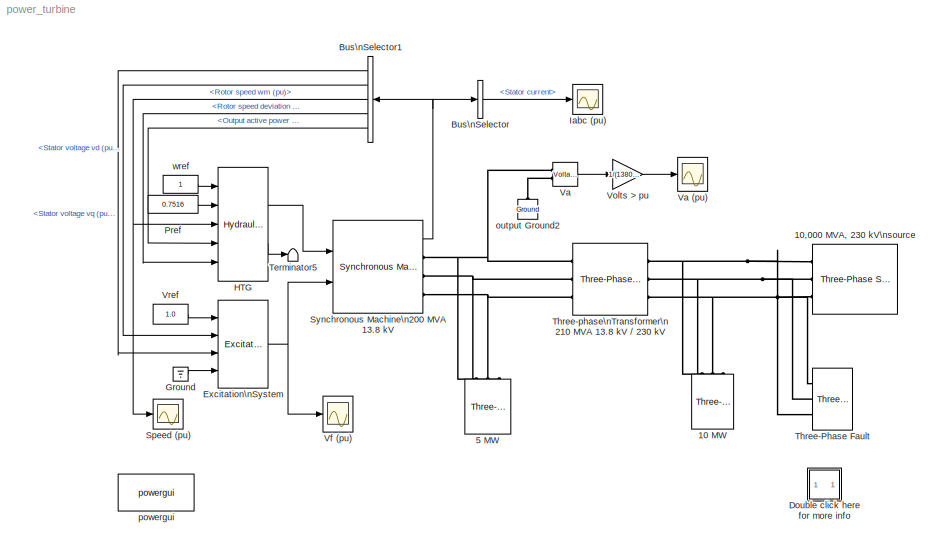
MODEL power_turbine
KIND model
BLOCK [Scope]  Iabc (pu)
  Floating = off
  NumInputPorts = 1
  Ports = [1]
  SID = 1
  ScopeSpecificationString = Simulink.scopes.TimeScopeBlockCfg('CurrentConfiguration', extmgr.ConfigurationSet(extmgr.Configuration('Core','General UI',true),extmgr.Configuration('Core','Source UI',true),extmgr.Configuration('Sources','WiredSimulink',true,'DataLoggingVariableName','ScopeData1','DataLoggingSaveFormat','Array','DataLoggingDecimation','1','DataLoggingDecimateData',true),extmgr.Configuration('Visuals','Time Domai...<+1734ch>
BLOCK [Scope]  Speed (pu)
  Floating = off
  NumInputPorts = 1
  Ports = [1]
  SID = 2
  ScopeSpecificationString = C++SS(StrPVP('Location','[601, 723, 844, 931]'),StrPVP('Open','off'),StrPVP('TickLabels','on'),MxPVP('AxesTitles',54,'struct(''axes1'',''%<SignalLabel>'')'),StrPVP('TimeRange','2'),StrPVP('YMin','0.98'),StrPVP('YMax','1.02'),StrPVP('SaveName','Pm'),StrPVP('DataFormat','Array'),StrPVP('LimitDataPoints','off'),StrPVP('BlockParamSampleTime','0'),StrPVP('Decimation','1'),StrPVP('BlockParamSampleInput'...<+8ch>
BLOCK [Reference] 10 MW  REF=powerlib/Elements/Three-Phase\nParallel RLC Load
  ActivePower = 10e6
  AttributesFormatString = \\n
  CapacitivePower = 0
  Configuration = Y (grounded)
  InductivePower = 0
  LConnTagsString = A|B|C
  LoadType = constant Z
  Measurements = None
  NominalFrequency = 60
  NominalVoltage = 230e3
  Pabc = [10e3 9e3 11e3]
  Pabcp = [10e3 9e3 11e3]
  Ports = [0, 0, 0, 0, 0, 3]
  QCabc = [100 90 110]
  QCabcp = [100 90 110]
  QLabc = [100 90 110]
  QLabcp = [100 90 110]
  SID = 3
  SourceBlock = powerlib/Elements/Three-Phase\nParallel RLC Load
  SourceProductBaseCode = PS
  SourceProductName = Simscape Electrical
  SourceType = Three-Phase Parallel RLC Load
  UnbalancedPower = off
  Vabc = [1e3 1e3 1e3]
  Vabcp = [1e3 1e3 1e3]
BLOCK [Reference] 10,000 MVA, 230 kV\nsource  REF=powerlib/Electrical\nSources/Three-Phase Source
  BaseVoltage = 230e3
  BusType = swing
  Frequency = 60
  Inductance = 0.0140
  InternalConnection = Yg
  NonIdealSource = on
  PhaseAngle = 0
  PhaseAngles_phases = [0 -120 +120]
  Ports = [0, 0, 0, 0, 0, 0, 3]
  Pref = 10e3
  Prefabc = [10e3, 10e3, 10e3]
  Qmax = inf
  Qmin = -inf
  Qref = 0
  Qrefabc = [0, 0, 0]
  Resistance = 0.529
  SID = 4
  ShortCircuitLevel = 10000e6
  SourceBlock = powerlib/Electrical\nSources/Three-Phase Source
  SourceProductBaseCode = PS
  SourceProductName = Simscape Electrical
  SourceType = Three-Phase Source
  SpecifyImpedance = on
  Voltage = 230e3
  VoltagePhases = off
  Voltage_phases = [25e3 25e3 25e3]/sqrt(3)
  XRratio = 10
BLOCK [Reference] 5 MW  REF=powerlib/Elements/Three-Phase\nParallel RLC Load
  ActivePower = 5e6
  AttributesFormatString = \\n
  CapacitivePower = 0
  Configuration = Y (grounded)
  InductivePower = 0
  LConnTagsString = A|B|C
  LoadType = constant Z
  Measurements = None
  NominalFrequency = 60
  NominalVoltage = 13.8e3
  Pabc = [10e3 9e3 11e3]
  Pabcp = [10e3 9e3 11e3]
  Ports = [0, 0, 0, 0, 0, 3]
  QCabc = [100 90 110]
  QCabcp = [100 90 110]
  QLabc = [100 90 110]
  QLabcp = [100 90 110]
  SID = 6
  SourceBlock = powerlib/Elements/Three-Phase\nParallel RLC Load
  SourceProductBaseCode = PS
  SourceProductName = Simscape Electrical
  SourceType = Three-Phase Parallel RLC Load
  UnbalancedPower = off
  Vabc = [1e3 1e3 1e3]
  Vabcp = [1e3 1e3 1e3]
BLOCK [BusSelector] Bus\nSelector
  OutputAsBus = off
  OutputSignals = Stator current
  Ports = [1, 1]
  SID = 7
BLOCK [BusSelector] Bus\nSelector1
  OutputAsBus = off
  OutputSignals = dq0 components.Stator voltage  vq (pu),dq0 components.Stator voltage  vd (pu),Mechanical.Rotor speed  wm  (pu),Mechanical.Rotor speed deviation  dw (pu),Output active power   Peo (pu)
  Ports = [1, 5]
  SID = 8
BLOCK [SubSystem] Double click here for more info
  OpenFcn = showdemo(bdroot(gcb))
  Ports = []
  RequestExecContextInheritance = off
  SID = 9
BLOCK [Reference] Excitation\nSystem  REF=sps_avr/Excitation System
  Ports = [4, 1]
  SID = 25
  SourceBlock = sps_avr/Excitation System
  SourceProductBaseCode = PS
  SourceProductName = Simscape Electrical
  SourceType = Excitation System
  damp = [ 0.001, 0.1 ]
  exc = [ 1, 0 ]
  lim = [ -11.5, 11.5, 0 ]
  reg = [ 300, 0.001 ]
  sat = [ 0, 0 ]
  tgr = [ 0, 0 ]
  tr = 20e-3
  v0 = [1,1.0]
BLOCK [Ground] Ground
  SID = 26
BLOCK [Reference] HTG  REF=powerlib/Machines/Hydraulic Turbine\nand Governor
  Ports = [5, 2]
  SID = 27
  SourceBlock = powerlib/Machines/Hydraulic Turbine\nand Governor
  SourceProductBaseCode = PS
  SourceProductName = Simscape Electrical
  SourceType = Hydraulic Turbine and Governor
  dref = 0
  gate = [  0.01  0.97518  -0.1  0.1 ]
  hyd = [  0  2.67  ]
  po = 1
  reg = [  0.05  1.163  0.105  0  0.01  ]
  sm = [ 10/3  0.07 ]
BLOCK [Constant] Pref
  SID = 28
  Value = 0.7516
BLOCK [Reference] Synchronous Machine\n200 MVA 13.8 kV  REF=powerlib/Machines/Synchronous Machine\npu Standard
  AttributesFormatString = \\n\\n
  BusType = PV
  InitialConditions = [0 0 0 0 0 0 0 0 1]
  IterativeDiscreteModel = Trapezoidal non iterative
  IterativeModel = Forward Euler
  LoadFlowParameters = [1 150000000 0 0]
  MeasurementBus = off
  Mechanical = [ 3.2 0  32]
  MechanicalLoad = Mechanical power Pm
  NominalParameters = [ 200E6  13800   60 ]
  PLF = 0
  PolePairs = 32
  Ports = [2, 1, 0, 0, 0, 0, 3]
  Pref = 0
  PresetModel = No
  QLF = 0
  Qmax = inf
  Qmin = -inf
  Qref = 0
  Reactances1 = [ 31 32 33 34 35 36 37 ]
  Reactances2 = [ 1.305, 0.296, 0.252, 0.474, 0.243, 0.18 ]
  RotorType = Salient-pole
  SID = 29
  Saturation = [0.6404,0.7127,0.8441,0.9214,0.9956,1.082,1.19,1.316,1.457;0.7,0.7698,0.8872,0.9466,0.9969,1.046,1.1,1.151,1.201]
  SetSaturation = off
  ShowDetailedParameters = on
  SourceBlock = powerlib/Machines/Synchronous Machine\npu Standard
  SourceProductBaseCode = PS
  SourceProductName = Simscape Electrical
  SourceType = Synchronous Machine
  StatorResistance = 2.8544e-3
  TimeConstants1 = []
  TimeConstants2 = []
  TimeConstants3 = []
  TimeConstants4 = []
  TimeConstants5 = [ 1.01, 0.053, 0.1 ]
  TimeConstants6 = []
  TimeConstants7 = []
  TimeConstants8 = []
  TsBlock = -1
  TsPowergui = 0
  Units = per unit standard parameters
  dAxisTimeConstants = Short-circuit
  qAxisTimeConstants = Open-circuit
BLOCK [Terminator] Terminator5
  SID = 30
BLOCK [Reference] Three-Phase Fault  REF=powerlib/Elements/Three-Phase Fault
  External = off
  FaultA = on
  FaultB = on
  FaultC = on
  FaultResistance = 0.001
  GroundFault = on
  GroundResistance = 0.01
  InitialStates = 0
  Measurements = None
  Ports = [0, 0, 0, 0, 0, 3]
  SID = 40
  SnubberCapacitance = inf
  SnubberResistance = 1e6
  SourceBlock = powerlib/Elements/Three-Phase Fault
  SourceProductBaseCode = PS
  SourceProductName = Simscape Electrical
  SourceType = Three-Phase Fault
  SwitchStatus = NaN
  SwitchTimes = [1/60  5/60]
BLOCK [Reference] Three-phase\nTransformer\n210 MVA 13.8 kV // 230 kV  REF=powerlib/Elements/Three-Phase\nTransformer\n(Two Windings)
  AttributesFormatString = \\n
  BreakLoop = off
  CoreType = Three single-phase transformers
  DataFile = 'hysteresis'
  DataType = off
  DiscreteSolver = Trapezoidal iterative
  Hysteresis = off
  InitialFluxes = [ 0.8 , -0.8 , 0.7 ]
  L0 = 0.5
  Lm = 500
  Measurements = None
  NominalPower = [ 210e6 60 ]
  Ports = [0, 0, 0, 0, 0, 3, 3]
  Rm = 500
  SID = 31
  Saturation = [ 0,0  ;  0.005,1.2  ;  1.0,1.4 ]
  SetInitialFlux = off
  SetSaturation = off
  SourceBlock = powerlib/Elements/Three-Phase\nTransformer\n(Two Windings)
  SourceProductBaseCode = PS
  SourceProductName = Simscape Electrical
  SourceType = Three-Phase Transformer (Two Windings)
  TransfoNumber = 0
  UNITS = pu
  Winding1 = [ 13.8e3 0.0027  0.08]
  Winding1Connection = Delta (D1)
  Winding2 = [ 230e3 0.0027 0.08]
  Winding2Connection = Yg
BLOCK [Reference] Va  REF=powerlib/Measurements/Voltage Measurement
  AttributesFormatString = \\n
  OutputType = Magnitude
  PSBequivalent = 0
  PhasorSimulation = off
  Ports = [0, 1, 0, 0, 0, 2]
  SID = 32
  SourceBlock = powerlib/Measurements/Voltage Measurement
  SourceProductBaseCode = PS
  SourceProductName = Simscape Electrical
  SourceType = Voltage Measurement
  Tag = PoWeRsYsTeMmEaSuReMeNt
BLOCK [Scope] Va (pu)
  Floating = off
  NumInputPorts = 1
  Ports = [1]
  SID = 33
  ScopeSpecificationString = C++SS(StrPVP('Location','[857, 334, 1101, 539]'),StrPVP('Open','off'),StrPVP('TickLabels','on'),StrPVP('ZoomMode','yonly'),MxPVP('AxesTitles',54,'struct(''axes1'',''%<SignalLabel>'')'),StrPVP('TimeRange','0.2'),StrPVP('YMin','-1.25'),StrPVP('YMax','1.25'),StrPVP('SaveName','vf'),StrPVP('DataFormat','Array'),StrPVP('LimitDataPoints','off'),StrPVP('BlockParamSampleTime','0'),StrPVP('Decimation','1')...<+39ch>
BLOCK [Scope] Vf (pu)
  Floating = off
  NumInputPorts = 1
  Ports = [1]
  SID = 34
  ScopeSpecificationString = C++SS(StrPVP('Location','[857, 604, 1102, 807]'),StrPVP('Open','off'),StrPVP('TickLabels','on'),StrPVP('ZoomMode','yonly'),MxPVP('AxesTitles',54,'struct(''axes1'',''%<SignalLabel>'')'),StrPVP('TimeRange','2'),StrPVP('YMin','-10'),StrPVP('YMax','15'),StrPVP('SaveName','vf'),StrPVP('DataFormat','Array'),StrPVP('LimitDataPoints','off'),StrPVP('BlockParamSampleTime','0'),StrPVP('Decimation','1'),StrPV...<+33ch>
BLOCK [Gain] Volts > pu
  Gain = 1/(13800/sqrt(3)*sqrt(2))
  SID = 35
BLOCK [Constant] Vref
  SID = 36
  Value = 1.0
BLOCK [Reference] output Ground2  REF=powerlib/Elements/Ground
  AttributesFormatString = \\n
  LConnTagsString = a
  Ports = [0, 0, 0, 0, 0, 1]
  SID = 37
  SourceBlock = powerlib/Elements/Ground
  SourceProductBaseCode = PS
  SourceProductName = Simscape Electrical
  SourceType = Ground
BLOCK [Reference] powergui  REF=powerlib/powergui
  AutomaticDiscreteSolvers = off
  ContinueOnMaxIteration = off
  CurrentSourceSwitches = on
  DisableRonSwitches = off
  DisableSnubberDevices = off
  DisableVfSwitches = off
  DisplayEquations = off
  DisplayStyle = off
  EnableUseOfTLC = off
  ErrMax = 1e-4
  ExternalGateDelay = off
  Frange = logspace(0,3,50)
  FreqAxis = off
  FunctionMessages = off
  HookPort = off
  Interpol = off
  Iterations = 50
  MaxFrequency = 1000
  NonlinearTolerance = 1e-4
  Pbase = 100e6
  Ports = []
  Priority = 2
  ResistiveCurrentMeasurement = off
  RestoreLinks = warning
  RmsSteady = 1
  SID = 38
  SPID = off
  SampleTime = 0
  ShowGrid = off
  SolverType = Tustin/Backward Euler (TBE)
  SourceBlock = powerlib/powergui
  SourceProductBaseCode = PS
  SourceProductName = Simscape Electrical
  SourceType = PSB option menu block
  StartTime = 0.0
  SwTol = 0
  Ts = 0
  UnitsV = kV
  UnitsW = MW
  Xlog = off
  Ylog = off
  ZoomFFT = on
  buscounter = 0
  cycles = 2
  display = off
  echomessages = off
  frequency = 60
  frequencyindice = 60
  frequencyindicesteady = 1
  fundamental = 60
  methode = off
  nMaxIteration = 100
  save = off
  structure = 0
  variable = ZData
  x0status = blocks
BLOCK [Constant] wref
  SID = 39
ANNOTATION Double click here for more info: 1
ANNOTATION Double click here for more info: 2
ANNOTATION Double click here for more info: 3
ANNOTATION Double click here for more info: 4
ANNOTATION Double click here for more info: A three-phase generator rated 200 MVA, 13.8 kV, 112.5 rpm is connected to a 230 kV, 10,000 MVA network through a Delta-Wye 210 MVA transformer. \nAt t = 0.1 s, a three-phase to ground fault occurs on the 230 kV bus. The fault is cleared after 6 cycles (t = 0.2 s). \nDuring this demo, you will initialize the system in order to start in steady-state with the generator supplying 150 MW of active powe...<+91ch>
ANNOTATION Double click here for more info: Circuit Description
ANNOTATION Double click here for more info: Demonstration
ANNOTATION Double click here for more info: In order to start the simulation in steady state with the HTG and excitation system connected, these two Simulink blocks must also be initialized\naccording to the values calculated by the load flow. This initialization is automatically performed when you execute the Load Flow, as long as you connect at\nthe Pm and Vf inputs of the machine either Constant blocks or regulation blocks from the machi...<+339ch>
ANNOTATION Double click here for more info: In order to start the simulation in steady-state you must initialize the synchronous machine for the desired load flow. \nOpen the Powergui and select 'Load Flow and Machine Initialization' . A new window appears. The machine 'Bus type' should be already initialized as\n'PV generator', indicating that the load flow will be performed with the machine controlling the active power and its terminal vo...<+74ch>
ANNOTATION Double click here for more info: Load flow : Terminal voltage (Vrms) = 13800; Active Power = 150e6. Then press the 'Execute Load Flow' button.
ANNOTATION Double click here for more info: Louis-A. Dessaint and R. Champagne (Ecole de Technologie Superieure, Montreal)
ANNOTATION Double click here for more info: Once the load flow has been solved the phasors of AB and BC machine voltages as well as the currents flowing out of phases A and B are updated.\nThe machine reactive power, mechanical power and field voltage requested to supply the electrical power should also be displayed: \nQ = 3.4 Mvar; Pmec = 150.32 MW (0.7516 pu); field voltage Ef = 1.291 pu.
ANNOTATION Double click here for more info: Open the 4 scopes and restart the simulation. The simulation now starts in steady state.\nObserve that the terminal voltage Va is 1.0 p.u. at the beginning of the simulation. It falls to about 0.4 pu during the fault and returns to nominal \nquickly after the fault is cleared. This quick response in terminal voltage is due to the fact that the Excitation System output Vf can go as high as 11.5 pu\...<+329ch>
ANNOTATION Double click here for more info: Start Simulation and observe the three machine currents on the Iabc scope. If the 9 parameters defining initial conditions \nfor the Synchronous Machine are set at zero or not set correctly, the simulation will not start in steady state.
ANNOTATION Double click here for more info: This demonstration illustrates use of the synchronous machine associated with\nthe Hydraulic Turbine and Governor (HTG) and Excitation System blocks and use of\nthe Load Flow to initialize machine currents
LINE Bus\nSelector1:1 -> Excitation\nSystem:3
LINE Bus\nSelector1:2 -> Excitation\nSystem:2
NET Bus\nSelector1:3 ->  Speed (pu):1, HTG:3
LINE Bus\nSelector1:4 -> HTG:5
LINE Bus\nSelector1:5 -> HTG:4
LINE Bus\nSelector:1 ->  Iabc (pu):1
NET Excitation\nSystem:1 -> Synchronous Machine\n200 MVA 13.8 kV:2, Vf (pu):1
LINE Ground:1 -> Excitation\nSystem:4
LINE HTG:1 -> Synchronous Machine\n200 MVA 13.8 kV:1
LINE HTG:2 -> Terminator5:1
LINE Pref:1 -> HTG:2
NET Synchronous Machine\n200 MVA 13.8 kV:1 -> Bus\nSelector1:1, Bus\nSelector:1
LINE Va:1 -> Volts > pu:1
LINE Volts > pu:1 -> Va (pu):1
LINE Vref:1 -> Excitation\nSystem:1
LINE wref:1 -> HTG:1
PNET net1: 10 MW:LConn1 -- 10,000 MVA, 230 kV\nsource:RConn1 -- Three-Phase Fault:LConn3 -- Three-phase\nTransformer\n210 MVA 13.8 kV // 230 kV:RConn1
PNET net2: 10 MW:LConn2 -- 10,000 MVA, 230 kV\nsource:RConn2 -- Three-Phase Fault:LConn2 -- Three-phase\nTransformer\n210 MVA 13.8 kV // 230 kV:RConn2
PNET net3: 10 MW:LConn3 -- 10,000 MVA, 230 kV\nsource:RConn3 -- Three-Phase Fault:LConn1 -- Three-phase\nTransformer\n210 MVA 13.8 kV // 230 kV:RConn3
PNET net4: 5 MW:LConn1 -- Synchronous Machine\n200 MVA 13.8 kV:RConn1 -- Three-phase\nTransformer\n210 MVA 13.8 kV // 230 kV:LConn1 -- Va:LConn1
PNET net5: 5 MW:LConn2 -- Synchronous Machine\n200 MVA 13.8 kV:RConn2 -- Three-phase\nTransformer\n210 MVA 13.8 kV // 230 kV:LConn2
PNET net6: 5 MW:LConn3 -- Synchronous Machine\n200 MVA 13.8 kV:RConn3 -- Three-phase\nTransformer\n210 MVA 13.8 kV // 230 kV:LConn3
PLINE Va:LConn2 -- output Ground2:LConn1
note: NET lines group one-source signal fan-out (src -> all destinations, sorted); 1:1 wires keep LINE; PNET lines group multi-terminal physical nets as a canonical sorted terminal list (undirected conserving connections); 2-terminal nets keep the pairwise PLINE form
